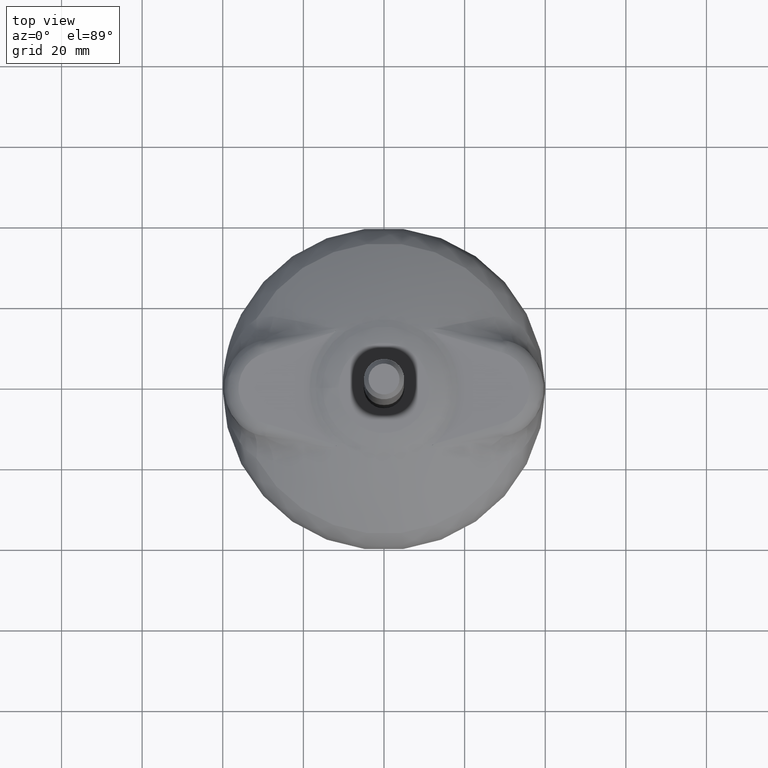
[diagram: clean part render]
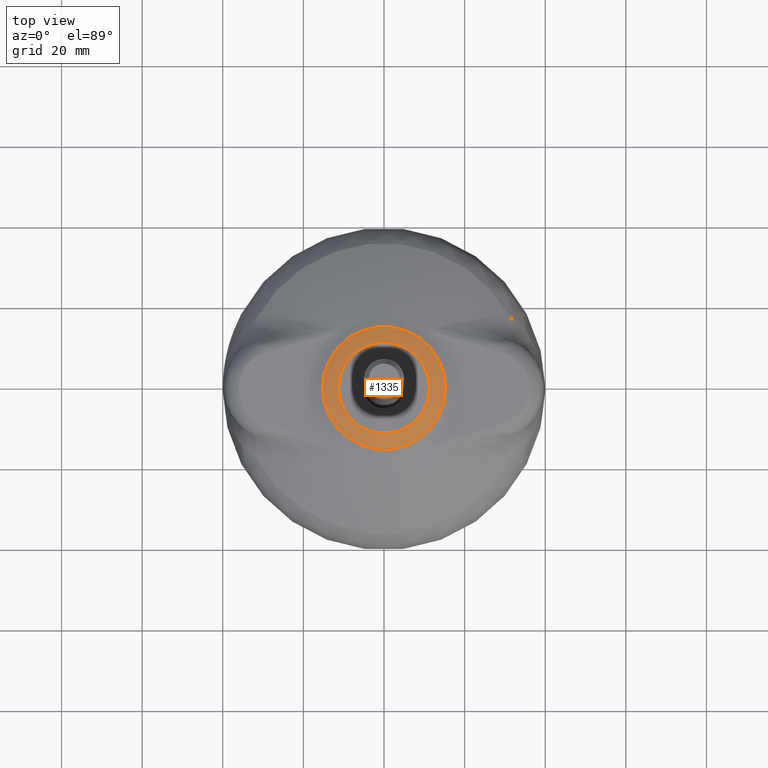
[diagram: same view with one face highlighted and labeled with its STEP entity id]
A machine part, top view. The second image highlights one B-rep face of the part: STEP entity #1335.
In plain terms, the highlighted face is a freeform B-spline surface patch.
Its self-contained STEP definition (entity closure, byte-faithful):
#1220=CARTESIAN_POINT('',(11.249998364795566,-4.555379E-014,16.500003937408884));
#1221=VERTEX_POINT('',#1220);
#1222=CARTESIAN_POINT('',(-11.250002747484439,-4.555379E-014,16.500002443310567));
#1223=VERTEX_POINT('',#1222);
#1224=CARTESIAN_POINT('',(-0.000002191344437,-4.555379E-014,16.500003190359756));
#1225=DIRECTION('',(0.000000066404364,0.0,-0.999999999999998));
#1226=DIRECTION('',(-0.999999999999998,0.0,-0.000000066404364));
#1227=AXIS2_PLACEMENT_3D('',#1224,#1225,#1226);
#1228=CIRCLE('',#1227,11.250000556140028);
#1229=EDGE_CURVE('',#1221,#1223,#1228,.T.);
#1231=CARTESIAN_POINT('',(-0.000002191344437,-4.555379E-014,16.500003190359756));
#1232=DIRECTION('',(0.000000066404364,0.0,-0.999999999999998));
#1233=DIRECTION('',(-0.999999999999998,0.0,-0.000000066404364));
#1234=AXIS2_PLACEMENT_3D('',#1231,#1232,#1233);
#1235=CIRCLE('',#1234,11.250000556140028);
#1236=EDGE_CURVE('',#1223,#1221,#1235,.T.);
#1270=CARTESIAN_POINT('',(-11.250000103591644,0.000000636395990,16.500002443310940));
#1271=CARTESIAN_POINT('',(-13.388091536720459,0.000000757344704,16.500002301332341));
#1272=CARTESIAN_POINT('',(-15.241103685084756,0.000000862166903,15.433334243657960));
#1273=CARTESIAN_POINT('',(-11.250000739987716,-11.249999007919513,16.500002443310894));
#1274=CARTESIAN_POINT('',(-13.388092294065249,-13.388090441048336,16.500002301332287));
#1275=CARTESIAN_POINT('',(-15.241104547251750,-15.241102660244042,15.433334243657898));
#1276=CARTESIAN_POINT('',(-0.000001095672218,-11.249999007919515,16.500003190359969));
#1277=CARTESIAN_POINT('',(-0.000001095672218,-13.388090441048336,16.500003190359969));
#1278=CARTESIAN_POINT('',(-0.000001024840812,-15.241102660244044,15.433335255733688));
#1279=CARTESIAN_POINT('',(11.249997912247226,-11.249999007919513,16.500003937408994));
#1280=CARTESIAN_POINT('',(13.388089345376041,-13.388090441048336,16.500004079387597));
#1281=CARTESIAN_POINT('',(15.241101635403153,-15.241102660244046,15.433336267809414));
#1282=CARTESIAN_POINT('',(11.249997912247226,-4.555379E-014,16.500003937408994));
#1283=CARTESIAN_POINT('',(13.388089345376045,-4.555379E-014,16.500004079387601));
#1284=CARTESIAN_POINT('',(15.241101635403155,-4.555379E-014,15.433336267809416));
#1285=CARTESIAN_POINT('',(11.249997912247226,11.249999007919422,16.500003937408994));
#1286=CARTESIAN_POINT('',(13.388089345376041,13.388090441048243,16.500004079387597));
#1287=CARTESIAN_POINT('',(15.241101635403153,15.241102660243953,15.433336267809414));
#1288=CARTESIAN_POINT('',(-0.000001095672218,11.249999007919422,16.500003190359969));
#1289=CARTESIAN_POINT('',(-0.000001095672218,13.388090441048243,16.500003190359969));
#1290=CARTESIAN_POINT('',(-0.000001024840812,15.241102660243953,15.433335255733688));
#1291=CARTESIAN_POINT('',(-11.250000739987716,11.249999007919424,16.500002443310894));
#1292=CARTESIAN_POINT('',(-13.388092294065249,13.388090441048247,16.500002301332287));
#1293=CARTESIAN_POINT('',(-15.241104547251750,15.241102660243957,15.433334243657898));
#1294=CARTESIAN_POINT('',(-11.250000103591642,-0.000000636396081,16.500002443310933));
#1295=CARTESIAN_POINT('',(-13.388091536720458,-0.000000757344795,16.500002301332337));
#1296=CARTESIAN_POINT('',(-15.241103685084752,-0.000000862166994,15.433334243657955));
#1304=(BOUNDED_SURFACE()B_SPLINE_SURFACE(2,2,((#1270,#1273,#1276,#1279,#1282,#1285,#1288,#1291,#1294),(#1271,#1274,#1277,#1280,#1283,#1286,#1289,#1292,#1295),(#1272,#1275,#1278,#1281,#1284,#1287,#1290,#1293,#1296)),.UNSPECIFIED.,.F.,.T.,.U.)B_SPLINE_SURFACE_WITH_KNOTS((3,3),(3,2,2,2,3),(0.749999990550330,0.835073278219113),(-1.000000E-008,0.250000000000000,0.500000000000000,0.750000000000000,1.000000010000000),.UNSPECIFIED.)GEOMETRIC_REPRESENTATION_ITEM()RATIONAL_B_SPLINE_SURFACE(((1.000000001289505,0.707106753814094,0.999999977858047,0.707106765529822,0.999999977858047,0.707106765529822,0.999999977858047,0.707106753814094,1.000000001289505),(0.900330454014824,0.636629743877455,0.900330432918769,0.636629754425482,0.900330432918769,0.636629754425482,0.900330432918769,0.636629743877455,0.900330454014824),(0.868494635277073,0.614118421463818,0.868494614926978,0.614118431638865,0.868494614926978,0.614118431638865,0.868494614926978,0.614118421463818,0.868494635277073)))REPRESENTATION_ITEM('')SURFACE());
#1305=CARTESIAN_POINT('',(-15.241103249512793,-4.462054E-014,15.433334899062171));
#1306=VERTEX_POINT('',#1305);
#1307=CARTESIAN_POINT('',(-11.249999999999998,-4.555379E-014,8.500002443310935));
#1308=DIRECTION('',(0.0,1.0,0.0));
#1309=DIRECTION('',(-0.999999999999998,0.0,-0.000000066404364));
#1310=AXIS2_PLACEMENT_3D('',#1307,#1308,#1309);
#1311=CIRCLE('',#1310,8.0);
#1312=EDGE_CURVE('',#1306,#1223,#1311,.T.);
#1313=ORIENTED_EDGE('',*,*,#1312,.T.);
#1314=ORIENTED_EDGE('',*,*,#1236,.T.);
#1315=ORIENTED_EDGE('',*,*,#1229,.T.);
#1316=ORIENTED_EDGE('',*,*,#1312,.F.);
#1317=CARTESIAN_POINT('',(15.241099277685112,-4.555379E-014,15.433337144768320));
#1318=VERTEX_POINT('',#1317);
#1319=CARTESIAN_POINT('',(-0.000002049681742,-4.555379E-014,15.433336132692681));
#1320=DIRECTION('',(0.000000066404364,0.0,-0.999999999999998));
#1321=DIRECTION('',(-0.999999999999998,0.0,-0.000000066404364));
#1322=AXIS2_PLACEMENT_3D('',#1319,#1320,#1321);
#1323=CIRCLE('',#1322,15.241101327366888);
#1324=EDGE_CURVE('',#1318,#1306,#1323,.T.);
#1325=ORIENTED_EDGE('',*,*,#1324,.F.);
#1326=CARTESIAN_POINT('',(-0.000002049681742,-4.555379E-014,15.433336132692681));
#1327=DIRECTION('',(0.000000066404364,0.0,-0.999999999999998));
#1328=DIRECTION('',(-0.999999999999998,0.0,-0.000000066404364));
#1329=AXIS2_PLACEMENT_3D('',#1326,#1327,#1328);
#1330=CIRCLE('',#1329,15.241101327366888);
#1331=EDGE_CURVE('',#1306,#1318,#1330,.T.);
#1332=ORIENTED_EDGE('',*,*,#1331,.F.);
#1333=EDGE_LOOP('',(#1313,#1314,#1315,#1316,#1325,#1332));
#1334=FACE_OUTER_BOUND('',#1333,.T.);
#1335=ADVANCED_FACE('',(#1334),#1304,.T.);